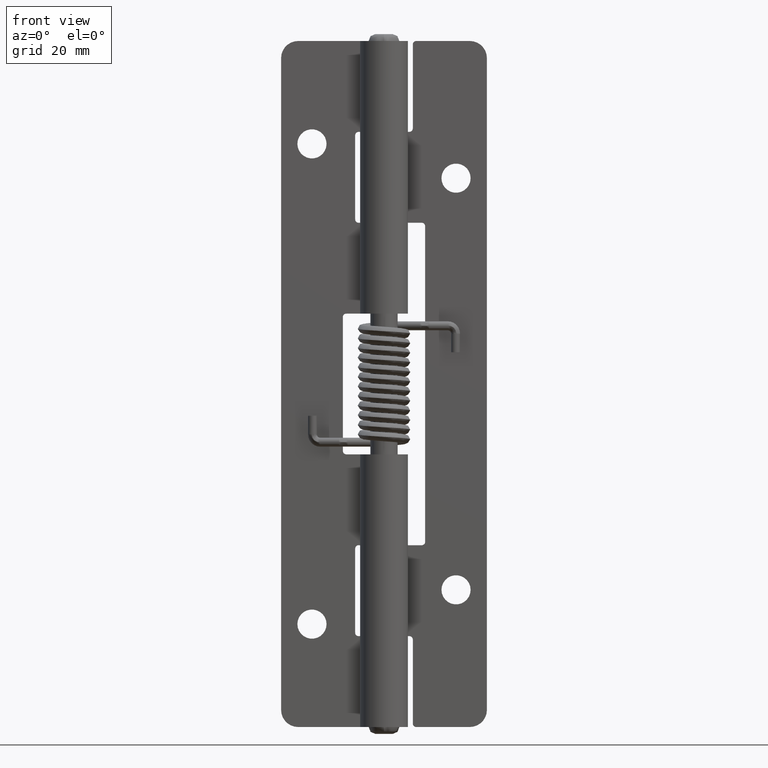
[diagram: clean part render]
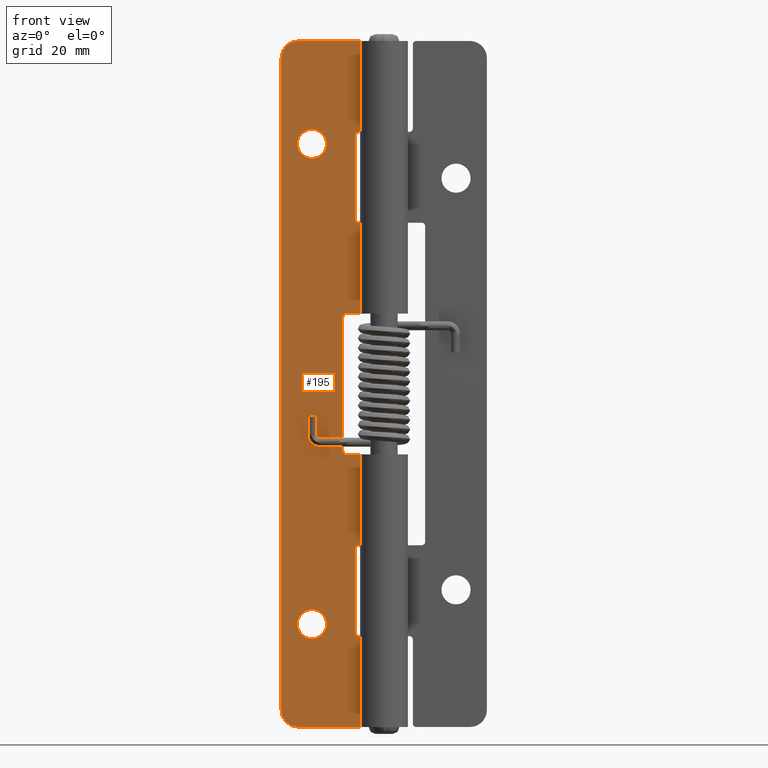
[diagram: same view with one face highlighted and labeled with its STEP entity id]
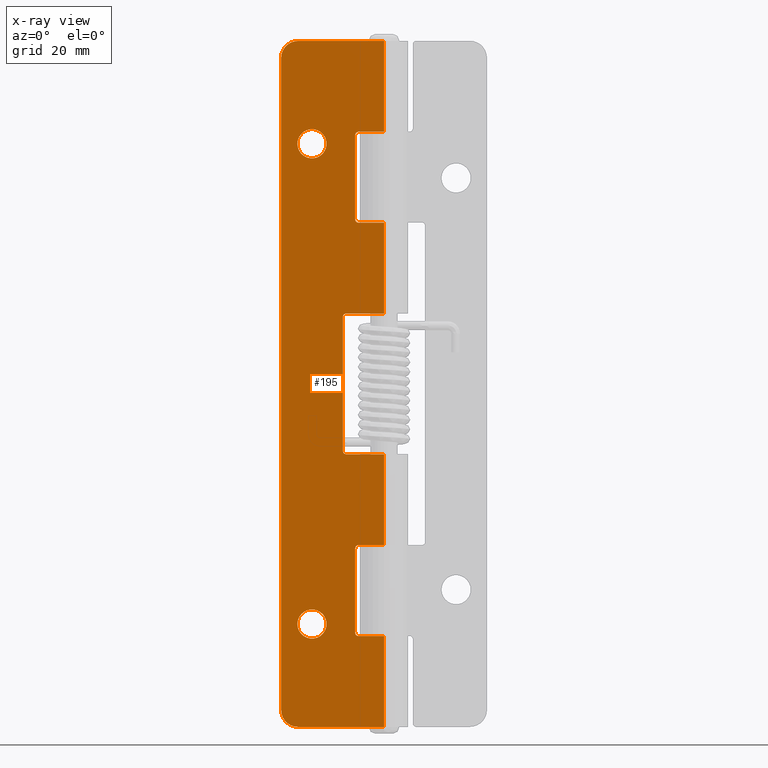
[diagram: x-ray of the same camera — body ghosted, the highlighted face saturated]
A machine part, front view. The second image highlights one B-rep face of the part: STEP entity #195.
The next image is the same camera in x-ray: the body ghosted, the highlighted face saturated — about 0% of this face is hidden behind the body in this view.
In plain terms, the highlighted planar face has unit normal (-0, 1, 0).
Its self-contained STEP definition (entity closure, byte-faithful):
#195=ADVANCED_FACE('',(#716,#717,#718),#715,.F.);
#715=PLANE('',#2974);
#716=FACE_OUTER_BOUND('',#2975,.T.);
#717=FACE_BOUND('',#2976,.T.);
#718=FACE_BOUND('',#2977,.T.);
#2971=CARTESIAN_POINT('',(3.30000000000E+01,-1.00000000000E+01,-4.00000000000E+00));
#2972=DIRECTION('',(5.78241158659E-17,0.00000000000E+00,-1.00000000000E+00));
#2973=DIRECTION('',(-1.00000000000E+00,0.00000000000E+00,-5.78241158659E-17));
#2974=AXIS2_PLACEMENT_3D('',#2971,#2972,#2973);
#2975=EDGE_LOOP('',(#3589,#3590,#3591,#3592,#3593,#3594,#3595,#3596,#3597,#3598,#3599,#3600,#3601,#3602,#3603,#3604,#3605,#3606,#3607,#3608,#3609,#3610,#3611,#3612,#3613,#3614));
#2976=EDGE_LOOP('',(#3615,#3616));
#2977=EDGE_LOOP('',(#3617,#3618));
#3589=ORIENTED_EDGE('',*,*,#4032,.F.);
#3590=ORIENTED_EDGE('',*,*,#4048,.T.);
#3591=ORIENTED_EDGE('',*,*,#4038,.F.);
#3592=ORIENTED_EDGE('',*,*,#4064,.F.);
#3593=ORIENTED_EDGE('',*,*,#4073,.T.);
#3594=ORIENTED_EDGE('',*,*,#4074,.F.);
#3595=ORIENTED_EDGE('',*,*,#4075,.F.);
#3596=ORIENTED_EDGE('',*,*,#4076,.F.);
#3597=ORIENTED_EDGE('',*,*,#4077,.F.);
#3598=ORIENTED_EDGE('',*,*,#4078,.F.);
#3599=ORIENTED_EDGE('',*,*,#4079,.T.);
#3600=ORIENTED_EDGE('',*,*,#4080,.F.);
#3601=ORIENTED_EDGE('',*,*,#4081,.F.);
#3602=ORIENTED_EDGE('',*,*,#4082,.F.);
#3603=ORIENTED_EDGE('',*,*,#4083,.F.);
#3604=ORIENTED_EDGE('',*,*,#4084,.F.);
#3605=ORIENTED_EDGE('',*,*,#4085,.T.);
#3606=ORIENTED_EDGE('',*,*,#4054,.T.);
#3607=ORIENTED_EDGE('',*,*,#4000,.F.);
#3608=ORIENTED_EDGE('',*,*,#3996,.T.);
#3609=ORIENTED_EDGE('',*,*,#3997,.F.);
#3610=ORIENTED_EDGE('',*,*,#4053,.T.);
#3611=ORIENTED_EDGE('',*,*,#4086,.T.);
#3612=ORIENTED_EDGE('',*,*,#4070,.T.);
#3613=ORIENTED_EDGE('',*,*,#4047,.T.);
#3614=ORIENTED_EDGE('',*,*,#4049,.T.);
#3615=ORIENTED_EDGE('',*,*,#4087,.F.);
#3616=ORIENTED_EDGE('',*,*,#4088,.F.);
#3617=ORIENTED_EDGE('',*,*,#4089,.F.);
#3618=ORIENTED_EDGE('',*,*,#4090,.F.);
#3996=EDGE_CURVE('',#4659,#4674,#4681,.T.);
#3997=EDGE_CURVE('',#4687,#4674,#4688,.T.);
#4000=EDGE_CURVE('',#4659,#4707,#4708,.T.);
#4032=EDGE_CURVE('',#4921,#4928,#4929,.T.);
#4038=EDGE_CURVE('',#4963,#4970,#4971,.T.);
#4047=EDGE_CURVE('',#4990,#5024,#5031,.T.);
#4048=EDGE_CURVE('',#4921,#4970,#5037,.T.);
#4049=EDGE_CURVE('',#5024,#4928,#5043,.T.);
#4053=EDGE_CURVE('',#4687,#5063,#5070,.T.);
#4054=EDGE_CURVE('',#5076,#4707,#5077,.T.);
#4064=EDGE_CURVE('',#5137,#4963,#5144,.T.);
#4070=EDGE_CURVE('',#5150,#4990,#5184,.T.);
#4073=EDGE_CURVE('',#5137,#5204,#5205,.T.);
#4074=EDGE_CURVE('',#5211,#5204,#5212,.T.);
#4075=EDGE_CURVE('',#5218,#5211,#5219,.T.);
#4076=EDGE_CURVE('',#5225,#5218,#5226,.T.);
#4077=EDGE_CURVE('',#5232,#5225,#5233,.T.);
#4078=EDGE_CURVE('',#5239,#5232,#5240,.T.);
#4079=EDGE_CURVE('',#5239,#5246,#5247,.T.);
#4080=EDGE_CURVE('',#5253,#5246,#5254,.T.);
#4081=EDGE_CURVE('',#5260,#5253,#5261,.T.);
#4082=EDGE_CURVE('',#5267,#5260,#5268,.T.);
#4083=EDGE_CURVE('',#5274,#5267,#5275,.T.);
#4084=EDGE_CURVE('',#5281,#5274,#5282,.T.);
#4085=EDGE_CURVE('',#5281,#5076,#5288,.T.);
#4086=EDGE_CURVE('',#5063,#5150,#5294,.T.);
#4087=EDGE_CURVE('',#5300,#5301,#5302,.T.);
#4088=EDGE_CURVE('',#5301,#5300,#5308,.T.);
#4089=EDGE_CURVE('',#5314,#5315,#5316,.T.);
#4090=EDGE_CURVE('',#5315,#5314,#5322,.T.);
#4659=VERTEX_POINT('',#6679);
#4674=VERTEX_POINT('',#6688);
#4681=LINE('',#6692,#6693);
#4687=VERTEX_POINT('',#6695);
#4688=CIRCLE('',#6699,1.00000000000E+00);
#4707=VERTEX_POINT('',#6708);
#4708=CIRCLE('',#6712,1.00000000000E+00);
#4921=VERTEX_POINT('',#6843);
#4928=VERTEX_POINT('',#6847);
#4929=LINE('',#6848,#6849);
#4963=VERTEX_POINT('',#6869);
#4970=VERTEX_POINT('',#6874);
#4971=LINE('',#6875,#6876);
#4990=VERTEX_POINT('',#6886);
#5024=VERTEX_POINT('',#6909);
#5031=LINE('',#6913,#6914);
#5037=CIRCLE('',#6919,5.00000000000E+00);
#5043=CIRCLE('',#6923,5.00000000000E+00);
#5063=VERTEX_POINT('',#6933);
#5070=LINE('',#6938,#6939);
#5076=VERTEX_POINT('',#6941);
#5077=LINE('',#6942,#6943);
#5137=VERTEX_POINT('',#6981);
#5144=LINE('',#6986,#6987);
#5150=VERTEX_POINT('',#6989);
#5184=LINE('',#7012,#7013);
#5204=VERTEX_POINT('',#7025);
#5205=LINE('',#7026,#7027);
#5211=VERTEX_POINT('',#7029);
#5212=LINE('',#7030,#7031);
#5218=VERTEX_POINT('',#7033);
#5219=CIRCLE('',#7037,1.00000000000E+00);
#5225=VERTEX_POINT('',#7038);
#5226=LINE('',#7039,#7040);
#5232=VERTEX_POINT('',#7042);
#5233=CIRCLE('',#7046,1.00000000000E+00);
#5239=VERTEX_POINT('',#7047);
#5240=LINE('',#7048,#7049);
#5246=VERTEX_POINT('',#7051);
#5247=LINE('',#7052,#7053);
#5253=VERTEX_POINT('',#7055);
#5254=LINE('',#7056,#7057);
#5260=VERTEX_POINT('',#7059);
#5261=CIRCLE('',#7063,1.00000000000E+00);
#5267=VERTEX_POINT('',#7064);
#5268=LINE('',#7065,#7066);
#5274=VERTEX_POINT('',#7068);
#5275=CIRCLE('',#7072,1.00000000000E+00);
#5281=VERTEX_POINT('',#7073);
#5282=LINE('',#7074,#7075);
#5288=LINE('',#7077,#7078);
#5294=LINE('',#7080,#7081);
#5300=VERTEX_POINT('',#7083);
#5301=VERTEX_POINT('',#7084);
#5302=CIRCLE('',#7088,4.25000000000E+00);
#5308=CIRCLE('',#7092,4.25000000000E+00);
#5314=VERTEX_POINT('',#7093);
#5315=VERTEX_POINT('',#7094);
#5316=CIRCLE('',#7098,4.25000000000E+00);
#5322=CIRCLE('',#7102,4.25000000000E+00);
#6679=CARTESIAN_POINT('',(8.40000000000E+00,5.20000000000E+01,-4.00000000000E+00));
#6688=CARTESIAN_POINT('',(8.40000000000E+00,2.75000000000E+01,-4.00000000000E+00));
#6692=CARTESIAN_POINT('',(8.40000000000E+00,5.20000000000E+01,-4.00000000000E+00));
#6693=VECTOR('',#6694,2.45000000000E+01);
#6694=DIRECTION('',(-1.23257413346E-15,-1.00000000000E+00,0.00000000000E+00));
#6695=CARTESIAN_POINT('',(7.40000000000E+00,2.65000000000E+01,-4.00000000000E+00));
#6696=CARTESIAN_POINT('',(7.40000000000E+00,2.75000000000E+01,-4.00000000000E+00));
#6697=DIRECTION('',(-5.78241158659E-17,-0.00000000000E+00,1.00000000000E+00));
#6698=DIRECTION('',(1.00000000000E+00,-0.00000000000E+00,5.78241158659E-17));
#6699=AXIS2_PLACEMENT_3D('',#6696,#6697,#6698);
#6708=CARTESIAN_POINT('',(7.40000000000E+00,5.30000000000E+01,-4.00000000000E+00));
#6709=CARTESIAN_POINT('',(7.40000000000E+00,5.20000000000E+01,-4.00000000000E+00));
#6710=DIRECTION('',(-5.78241158659E-17,-0.00000000000E+00,1.00000000000E+00));
#6711=DIRECTION('',(1.00000000000E+00,-0.00000000000E+00,5.78241158659E-17));
#6712=AXIS2_PLACEMENT_3D('',#6709,#6710,#6711);
#6843=CARTESIAN_POINT('',(3.00000000000E+01,1.95000000000E+02,-4.00000000000E+00));
#6847=CARTESIAN_POINT('',(3.00000000000E+01,5.00000000000E+00,-4.00000000000E+00));
#6848=CARTESIAN_POINT('',(3.00000000000E+01,1.95000000000E+02,-4.00000000000E+00));
#6849=VECTOR('',#6850,1.90000000000E+02);
#6850=DIRECTION('',(0.00000000000E+00,-1.00000000000E+00,0.00000000000E+00));
#6869=CARTESIAN_POINT('',(2.06155281281E+00,2.00000000000E+02,-4.00000000000E+00));
#6874=CARTESIAN_POINT('',(2.50000000000E+01,2.00000000000E+02,-4.00000000000E+00));
#6875=CARTESIAN_POINT('',(2.06155281281E+00,2.00000000000E+02,-4.00000000000E+00));
#6876=VECTOR('',#6877,2.29384471872E+01);
#6877=DIRECTION('',(1.00000000000E+00,0.00000000000E+00,7.74401521125E-17));
#6886=CARTESIAN_POINT('',(2.06155281281E+00,0.00000000000E+00,-4.00000000000E+00));
#6909=CARTESIAN_POINT('',(2.50000000000E+01,0.00000000000E+00,-4.00000000000E+00));
#6913=CARTESIAN_POINT('',(2.06155281281E+00,0.00000000000E+00,-4.00000000000E+00));
#6914=VECTOR('',#6915,2.29384471872E+01);
#6915=DIRECTION('',(1.00000000000E+00,0.00000000000E+00,7.74401521125E-17));
#6916=CARTESIAN_POINT('',(2.50000000000E+01,1.95000000000E+02,-4.00000000000E+00));
#6917=DIRECTION('',(-5.78241158659E-17,0.00000000000E+00,1.00000000000E+00));
#6918=DIRECTION('',(-1.83690953073E-16,1.00000000000E+00,-1.06217669540E-32));
#6919=AXIS2_PLACEMENT_3D('',#6916,#6917,#6918);
#6920=CARTESIAN_POINT('',(2.50000000000E+01,5.00000000000E+00,-4.00000000000E+00));
#6921=DIRECTION('',(-5.78241158659E-17,-0.00000000000E+00,1.00000000000E+00));
#6922=DIRECTION('',(1.00000000000E+00,-0.00000000000E+00,5.78241158659E-17));
#6923=AXIS2_PLACEMENT_3D('',#6920,#6921,#6922);
#6933=CARTESIAN_POINT('',(-7.34788079488E-16,2.65000000000E+01,-4.00000000000E+00));
#6938=CARTESIAN_POINT('',(7.40000000000E+00,2.65000000000E+01,-4.00000000000E+00));
#6939=VECTOR('',#6940,7.40000000000E+00);
#6940=DIRECTION('',(-1.00000000000E+00,0.00000000000E+00,0.00000000000E+00));
#6941=CARTESIAN_POINT('',(1.44421511787E-14,5.30000000000E+01,-4.00000000000E+00));
#6942=CARTESIAN_POINT('',(1.44421511787E-14,5.30000000000E+01,-4.00000000000E+00));
#6943=VECTOR('',#6944,7.40000000000E+00);
#6944=DIRECTION('',(1.00000000000E+00,0.00000000000E+00,0.00000000000E+00));
#6981=CARTESIAN_POINT('',(1.44421511787E-14,2.00000000000E+02,-4.00000000003E+00));
#6986=CARTESIAN_POINT('',(1.44421511787E-14,2.00000000000E+02,-4.00000000000E+00));
#6987=VECTOR('',#6988,2.06155281281E+00);
#6988=DIRECTION('',(1.00000000000E+00,0.00000000000E+00,0.00000000000E+00));
#6989=CARTESIAN_POINT('',(-7.34788079488E-16,0.00000000000E+00,-4.00000000000E+00));
#7012=CARTESIAN_POINT('',(-7.34788079488E-16,0.00000000000E+00,-4.00000000000E+00));
#7013=VECTOR('',#7014,2.06155281281E+00);
#7014=DIRECTION('',(1.00000000000E+00,0.00000000000E+00,0.00000000000E+00));
#7025=CARTESIAN_POINT('',(1.44421511787E-14,1.73500000000E+02,-4.00000000000E+00));
#7026=CARTESIAN_POINT('',(-7.34788079488E-16,2.00000000000E+02,-4.00000000000E+00));
#7027=VECTOR('',#7028,2.65000000000E+01);
#7028=DIRECTION('',(0.00000000000E+00,-1.00000000000E+00,0.00000000000E+00));
#7029=CARTESIAN_POINT('',(7.40000000000E+00,1.73500000000E+02,-4.00000000000E+00));
#7030=CARTESIAN_POINT('',(7.40000000000E+00,1.73500000000E+02,-4.00000000000E+00));
#7031=VECTOR('',#7032,7.40000000000E+00);
#7032=DIRECTION('',(-1.00000000000E+00,0.00000000000E+00,0.00000000000E+00));
#7033=CARTESIAN_POINT('',(8.40000000000E+00,1.72500000000E+02,-4.00000000000E+00));
#7034=CARTESIAN_POINT('',(7.40000000000E+00,1.72500000000E+02,-4.00000000000E+00));
#7035=DIRECTION('',(-5.78241158659E-17,-0.00000000000E+00,1.00000000000E+00));
#7036=DIRECTION('',(1.00000000000E+00,-0.00000000000E+00,5.78241158659E-17));
#7037=AXIS2_PLACEMENT_3D('',#7034,#7035,#7036);
#7038=CARTESIAN_POINT('',(8.40000000000E+00,1.48000000000E+02,-4.00000000000E+00));
#7039=CARTESIAN_POINT('',(8.40000000000E+00,1.48000000000E+02,-4.00000000000E+00));
#7040=VECTOR('',#7041,2.45000000000E+01);
#7041=DIRECTION('',(0.00000000000E+00,1.00000000000E+00,0.00000000000E+00));
#7042=CARTESIAN_POINT('',(7.40000000000E+00,1.47000000000E+02,-4.00000000000E+00));
#7043=CARTESIAN_POINT('',(7.40000000000E+00,1.48000000000E+02,-4.00000000000E+00));
#7044=DIRECTION('',(-5.78241158659E-17,-0.00000000000E+00,1.00000000000E+00));
#7045=DIRECTION('',(1.00000000000E+00,-0.00000000000E+00,5.78241158659E-17));
#7046=AXIS2_PLACEMENT_3D('',#7043,#7044,#7045);
#7047=CARTESIAN_POINT('',(-7.34787846853E-16,1.47000000000E+02,-4.00000000000E+00));
#7048=CARTESIAN_POINT('',(-7.34787846853E-16,1.47000000000E+02,-4.00000000000E+00));
#7049=VECTOR('',#7050,7.40000000000E+00);
#7050=DIRECTION('',(1.00000000000E+00,0.00000000000E+00,0.00000000000E+00));
#7051=CARTESIAN_POINT('',(1.44421511787E-14,1.20500000000E+02,-4.00000000000E+00));
#7052=CARTESIAN_POINT('',(-7.34788079488E-16,1.47000000000E+02,-4.00000000000E+00));
#7053=VECTOR('',#7054,2.65000000000E+01);
#7054=DIRECTION('',(0.00000000000E+00,-1.00000000000E+00,0.00000000000E+00));
#7055=CARTESIAN_POINT('',(1.10000000000E+01,1.20500000000E+02,-4.00000000000E+00));
#7056=CARTESIAN_POINT('',(1.10000000000E+01,1.20500000000E+02,-4.00000000000E+00));
#7057=VECTOR('',#7058,1.10000000000E+01);
#7058=DIRECTION('',(-1.00000000000E+00,0.00000000000E+00,-8.07434927000E-17));
#7059=CARTESIAN_POINT('',(1.20000000000E+01,1.19500000000E+02,-4.00000000000E+00));
#7060=CARTESIAN_POINT('',(1.10000000000E+01,1.19500000000E+02,-4.00000000000E+00));
#7061=DIRECTION('',(-5.78241158659E-17,-0.00000000000E+00,1.00000000000E+00));
#7062=DIRECTION('',(1.00000000000E+00,-0.00000000000E+00,5.78241158659E-17));
#7063=AXIS2_PLACEMENT_3D('',#7060,#7061,#7062);
#7064=CARTESIAN_POINT('',(1.20000000000E+01,8.05000000000E+01,-4.00000000000E+00));
#7065=CARTESIAN_POINT('',(1.20000000000E+01,8.05000000000E+01,-4.00000000000E+00));
#7066=VECTOR('',#7067,3.90000000000E+01);
#7067=DIRECTION('',(-3.64380890133E-16,1.00000000000E+00,0.00000000000E+00));
#7068=CARTESIAN_POINT('',(1.10000000000E+01,7.95000000000E+01,-4.00000000000E+00));
#7069=CARTESIAN_POINT('',(1.10000000000E+01,8.05000000000E+01,-4.00000000000E+00));
#7070=DIRECTION('',(-5.78241158659E-17,-0.00000000000E+00,1.00000000000E+00));
#7071=DIRECTION('',(1.00000000000E+00,-0.00000000000E+00,5.78241158659E-17));
#7072=AXIS2_PLACEMENT_3D('',#7069,#7070,#7071);
#7073=CARTESIAN_POINT('',(-7.34787846853E-16,7.95000000000E+01,-4.00000000000E+00));
#7074=CARTESIAN_POINT('',(-7.34787846853E-16,7.95000000000E+01,-4.00000000000E+00));
#7075=VECTOR('',#7076,1.10000000000E+01);
#7076=DIRECTION('',(1.00000000000E+00,0.00000000000E+00,8.07434927000E-17));
#7077=CARTESIAN_POINT('',(-7.34788079488E-16,7.95000000000E+01,-4.00000000000E+00));
#7078=VECTOR('',#7079,2.65000000000E+01);
#7079=DIRECTION('',(0.00000000000E+00,-1.00000000000E+00,0.00000000000E+00));
#7080=CARTESIAN_POINT('',(-7.34788079488E-16,2.65000000000E+01,-4.00000000000E+00));
#7081=VECTOR('',#7082,2.65000000000E+01);
#7082=DIRECTION('',(0.00000000000E+00,-1.00000000000E+00,0.00000000000E+00));
#7083=CARTESIAN_POINT('',(2.52500000000E+01,3.00000000000E+01,-4.00000000000E+00));
#7084=CARTESIAN_POINT('',(1.67500000000E+01,3.00000000000E+01,-4.00000000000E+00));
#7085=CARTESIAN_POINT('',(2.10000000000E+01,3.00000000000E+01,-4.00000000000E+00));
#7086=DIRECTION('',(0.00000000000E+00,0.00000000000E+00,1.00000000000E+00));
#7087=DIRECTION('',(-1.00000000000E+00,-1.22460635382E-16,0.00000000000E+00));
#7088=AXIS2_PLACEMENT_3D('',#7085,#7086,#7087);
#7089=CARTESIAN_POINT('',(2.10000000000E+01,3.00000000000E+01,-4.00000000000E+00));
#7090=DIRECTION('',(0.00000000000E+00,0.00000000000E+00,1.00000000000E+00));
#7091=DIRECTION('',(-1.00000000000E+00,-1.22460635382E-16,0.00000000000E+00));
#7092=AXIS2_PLACEMENT_3D('',#7089,#7090,#7091);
#7093=CARTESIAN_POINT('',(2.52500000000E+01,1.70000000000E+02,-4.00000000000E+00));
#7094=CARTESIAN_POINT('',(1.67500000000E+01,1.70000000000E+02,-4.00000000000E+00));
#7095=CARTESIAN_POINT('',(2.10000000000E+01,1.70000000000E+02,-4.00000000000E+00));
#7096=DIRECTION('',(0.00000000000E+00,0.00000000000E+00,1.00000000000E+00));
#7097=DIRECTION('',(-1.00000000000E+00,-1.22460635382E-16,0.00000000000E+00));
#7098=AXIS2_PLACEMENT_3D('',#7095,#7096,#7097);
#7099=CARTESIAN_POINT('',(2.10000000000E+01,1.70000000000E+02,-4.00000000000E+00));
#7100=DIRECTION('',(0.00000000000E+00,0.00000000000E+00,1.00000000000E+00));
#7101=DIRECTION('',(-1.00000000000E+00,-1.22460635382E-16,0.00000000000E+00));
#7102=AXIS2_PLACEMENT_3D('',#7099,#7100,#7101);